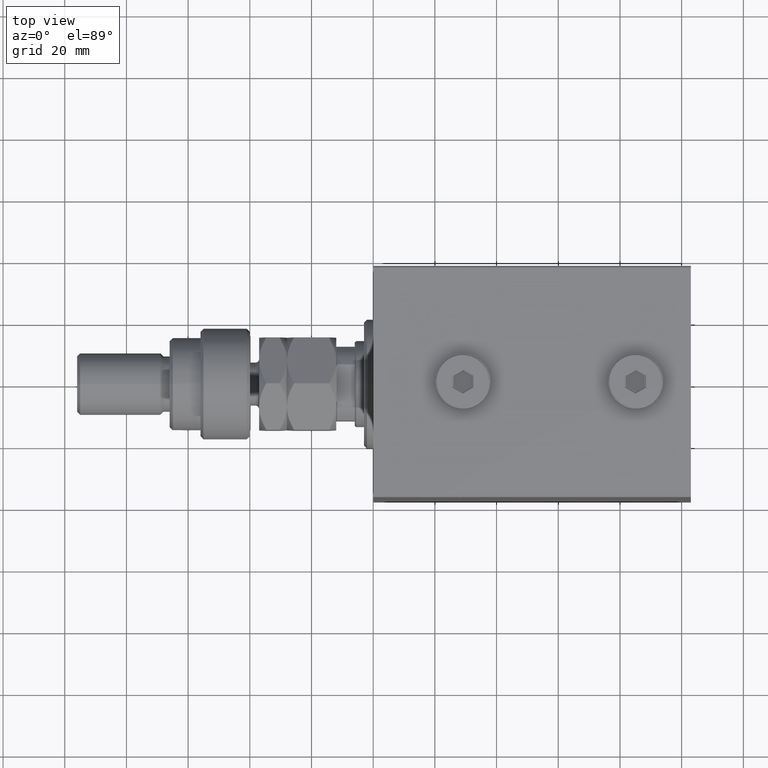
[diagram: clean part render]
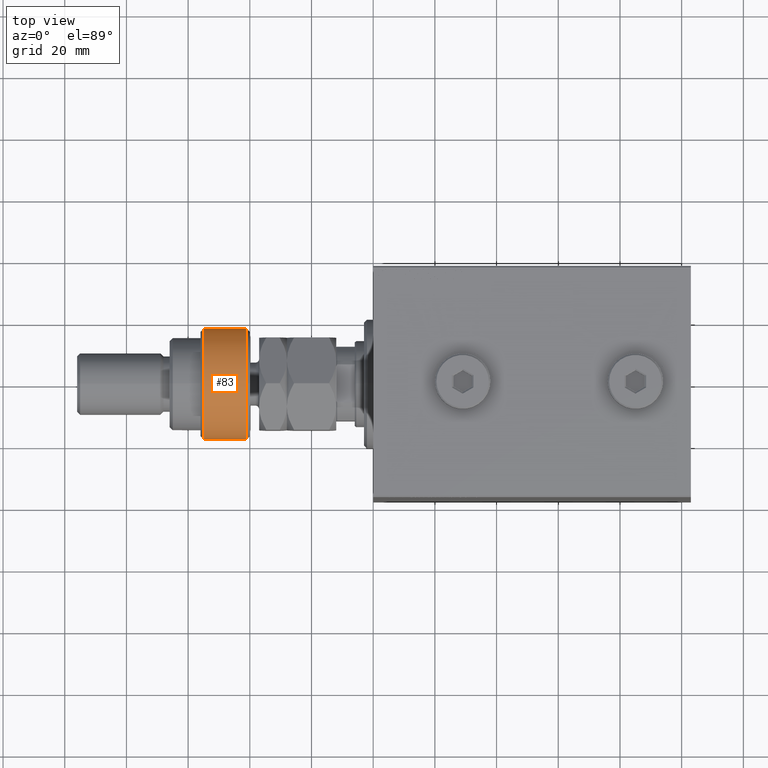
[diagram: same view with one face highlighted and labeled with its STEP entity id]
A machine part, top view. The second image highlights one B-rep face of the part: STEP entity #83.
In plain terms, the highlighted cylindrical surface (partial cylindrical patch) has radius 18 mm, axis along (1, -0, -0).
Its self-contained STEP definition (entity closure, byte-faithful):
#83 = ADVANCED_FACE ( 'NONE', ( #45186 ), #18434, .T. ) ;
#2525 = AXIS2_PLACEMENT_3D ( 'NONE', #47099, #47340, #17622 ) ;
#2964 = ORIENTED_EDGE ( 'NONE', *, *, #17760, .T. ) ;
#3161 = DIRECTION ( 'NONE',  ( -0.000000000000000000, -0.000000000000000000, -1.000000000000000000 ) ) ;
#4856 = EDGE_CURVE ( 'NONE', #34107, #18162, #11340, .T. ) ;
#4951 = CARTESIAN_POINT ( 'NONE',  ( -16.36306817195357155, -7.500000000000000000, 1.000000000000011324 ) ) ;
#8404 = DIRECTION ( 'NONE',  ( -0.000000000000000000, -0.000000000000000000, -1.000000000000000000 ) ) ;
#11340 = LINE ( 'NONE', #41304, #24058 ) ;
#12078 = ORIENTED_EDGE ( 'NONE', *, *, #20370, .T. ) ;
#13631 = CARTESIAN_POINT ( 'NONE',  ( 0.000000000000000000, 0.000000000000000000, 1.000000000000011324 ) ) ;
#14492 = ORIENTED_EDGE ( 'NONE', *, *, #4856, .F. ) ;
#15347 = CARTESIAN_POINT ( 'NONE',  ( -16.36306817195357155, 7.500000000000000000, 1.000000000000011324 ) ) ;
#17622 = DIRECTION ( 'NONE',  ( 1.000000000000000000, 0.000000000000000000, 0.000000000000000000 ) ) ;
#17760 = EDGE_CURVE ( 'NONE', #23106, #34710, #26215, .T. ) ;
#18162 = VERTEX_POINT ( 'NONE', #15347 ) ;
#18434 = CYLINDRICAL_SURFACE ( 'NONE', #43624, 18.00000000000000000 ) ;
#18917 = CIRCLE ( 'NONE', #29117, 18.00000000000000000 ) ;
#20186 = CIRCLE ( 'NONE', #27208, 18.00000000000000000 ) ;
#20370 = EDGE_CURVE ( 'NONE', #34710, #34022, #18917, .T. ) ;
#20871 = EDGE_LOOP ( 'NONE', ( #14492, #34660, #2964, #12078, #25509 ) ) ;
#22640 = DIRECTION ( 'NONE',  ( 0.000000000000000000, 0.000000000000000000, -1.000000000000000000 ) ) ;
#23106 = VERTEX_POINT ( 'NONE', #24247 ) ;
#23381 = CARTESIAN_POINT ( 'NONE',  ( -16.36306817195357155, 7.500000000000000000, 14.99999999999999645 ) ) ;
#23684 = CIRCLE ( 'NONE', #2525, 18.00000000000000000 ) ;
#24058 = VECTOR ( 'NONE', #8404, 1000.000000000000000 ) ;
#24247 = CARTESIAN_POINT ( 'NONE',  ( -16.36306817195357155, -7.500000000000000000, 14.99999999999999645 ) ) ;
#25509 = ORIENTED_EDGE ( 'NONE', *, *, #47905, .T. ) ;
#25840 = DIRECTION ( 'NONE',  ( 1.000000000000000000, 0.000000000000000000, 0.000000000000000000 ) ) ;
#26051 = DIRECTION ( 'NONE',  ( -1.000000000000000000, 0.000000000000000000, 0.000000000000000000 ) ) ;
#26215 = LINE ( 'NONE', #28524, #47225 ) ;
#26568 = CARTESIAN_POINT ( 'NONE',  ( 0.000000000000000000, 0.000000000000000000, 14.99999999999999645 ) ) ;
#27208 = AXIS2_PLACEMENT_3D ( 'NONE', #26568, #22640, #25840 ) ;
#28524 = CARTESIAN_POINT ( 'NONE',  ( -16.36306817195357155, -7.500000000000000000, 17.50000000000000000 ) ) ;
#29117 = AXIS2_PLACEMENT_3D ( 'NONE', #13631, #32535, #39909 ) ;
#29478 = DIRECTION ( 'NONE',  ( -0.000000000000000000, -0.000000000000000000, -1.000000000000000000 ) ) ;
#32405 = EDGE_CURVE ( 'NONE', #34107, #23106, #20186, .T. ) ;
#32535 = DIRECTION ( 'NONE',  ( -0.000000000000000000, -0.000000000000000000, 1.000000000000000000 ) ) ;
#34022 = VERTEX_POINT ( 'NONE', #44997 ) ;
#34107 = VERTEX_POINT ( 'NONE', #23381 ) ;
#34660 = ORIENTED_EDGE ( 'NONE', *, *, #32405, .T. ) ;
#34710 = VERTEX_POINT ( 'NONE', #4951 ) ;
#39909 = DIRECTION ( 'NONE',  ( 1.000000000000000000, 0.000000000000000000, 0.000000000000000000 ) ) ;
#41304 = CARTESIAN_POINT ( 'NONE',  ( -16.36306817195357155, 7.500000000000000000, 17.50000000000000000 ) ) ;
#43624 = AXIS2_PLACEMENT_3D ( 'NONE', #45433, #29478, #26051 ) ;
#44997 = CARTESIAN_POINT ( 'NONE',  ( 18.00000000000000000, 0.000000000000000000, 1.000000000000011324 ) ) ;
#45186 = FACE_OUTER_BOUND ( 'NONE', #20871, .T. ) ;
#45433 = CARTESIAN_POINT ( 'NONE',  ( 0.000000000000000000, 0.000000000000000000, 16.00000000000000000 ) ) ;
#47099 = CARTESIAN_POINT ( 'NONE',  ( 0.000000000000000000, 0.000000000000000000, 1.000000000000011324 ) ) ;
#47225 = VECTOR ( 'NONE', #3161, 1000.000000000000000 ) ;
#47340 = DIRECTION ( 'NONE',  ( -0.000000000000000000, -0.000000000000000000, 1.000000000000000000 ) ) ;
#47905 = EDGE_CURVE ( 'NONE', #34022, #18162, #23684, .T. ) ;